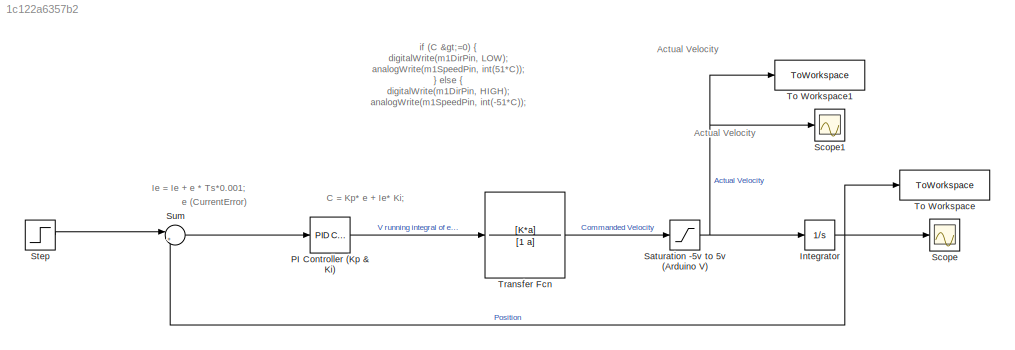
MODEL slx_1c122a6357b2
KIND model
CONFIG AbsTol = auto
CONFIG EnableMultiTasking = off
CONFIG FixedStep = auto
CONFIG MaxStep = auto
CONFIG MinStep = auto
CONFIG RelTol = 1e-3
CONFIG SampleTimeConstraint = Unconstrained
CONFIG SolverName = VariableStepAuto
CONFIG StartTime = 0.0
CONFIG StopTime = 10.0
BLOCK [Integrator] Integrator
  Ports = [1, 1]
BLOCK [Reference] PI Controller (Kp & Ki)  REF=slpidlib/PID Controller
  Ports = [1, 1]
  SourceBlock = slpidlib/PID Controller
  SourceProductBaseCode = SL
  SourceType = PID 1dof
BLOCK [Saturate] Saturation -5v to 5v (Arduino V)
  LowerLimit = -5
  UpperLimit = 5
BLOCK [Scope] Scope
  Floating = off
  NumInputPorts = 1
  Ports = [1]
  ScopeSpecificationString = Simulink.scopes.TimeScopeBlockCfg('CurrentConfiguration', extmgr.ConfigurationSet(extmgr.Configuration('Core','General UI',true),extmgr.Configuration('Core','Source UI',true),extmgr.Configuration('Sources','WiredSimulink',true),extmgr.Configuration('Visuals','Time Domain',true,'SerializedDisplays',{struct('MinYLimReal','-0.12701','MaxYLimReal','1.14305','YLabelReal','','MinYLimMag','0.00000','MaxY...<+1357ch>
BLOCK [Scope] Scope1
  Floating = off
  NumInputPorts = 1
  Ports = [1]
  ScopeSpecificationString = Simulink.scopes.TimeScopeBlockCfg('CurrentConfiguration', extmgr.ConfigurationSet(extmgr.Configuration('Core','General UI',true),extmgr.Configuration('Core','Source UI',true),extmgr.Configuration('Sources','WiredSimulink',true,'DataLoggingVariableName','ScopeData1'),extmgr.Configuration('Visuals','Time Domain',true,'SerializedDisplays',{struct('MinYLimReal','-0.18231','MaxYLimReal','1.63574','YLab...<+1403ch>
BLOCK [Step] Step
  SampleTime = 0
BLOCK [Sum] Sum
  Inputs = |+-
  NameLocation = top
  Ports = [2, 1]
BLOCK [ToWorkspace] To Workspace
  FixptAsFi = on
  MaxDataPoints = inf
  Ports = [1]
  SampleTime = -1
  SaveFormat = Timeseries
  VariableName = position
BLOCK [ToWorkspace] To Workspace1
  FixptAsFi = on
  MaxDataPoints = inf
  Ports = [1]
  SampleTime = -1
  SaveFormat = Timeseries
  VariableName = velocity
BLOCK [TransferFcn] Transfer Fcn
  Denominator = [1 a]
  Numerator = [K*a]
ANNOTATION (root): Ie = Ie + e * Ts*0.001;
ANNOTATION (root): if (C >=0) { digitalWrite(m1DirPin, LOW); analogWrite(m1SpeedPin, int(51*C)); } else { digitalWrite(m1DirPin, HIGH); analogWrite(m1SpeedPin, int(-51*C));
ANNOTATION (root): C = Kp* e + Ie* Ki;
ANNOTATION (root): Actual Velocity
ANNOTATION (root): e (CurrentError)
NET Integrator:1 -> Scope:1, Sum:2, To Workspace:1
LINE PI Controller (Kp & Ki):1 -> Transfer Fcn:1
NET Saturation -5v to 5v (Arduino V):1 -> Integrator:1, Scope1:1, To Workspace1:1
LINE Step:1 -> Sum:1
LINE Sum:1 -> PI Controller (Kp & Ki):1
LINE Transfer Fcn:1 -> Saturation -5v to 5v (Arduino V):1
note: NET lines group one-source signal fan-out (src -> all destinations, sorted); 1:1 wires keep LINE
